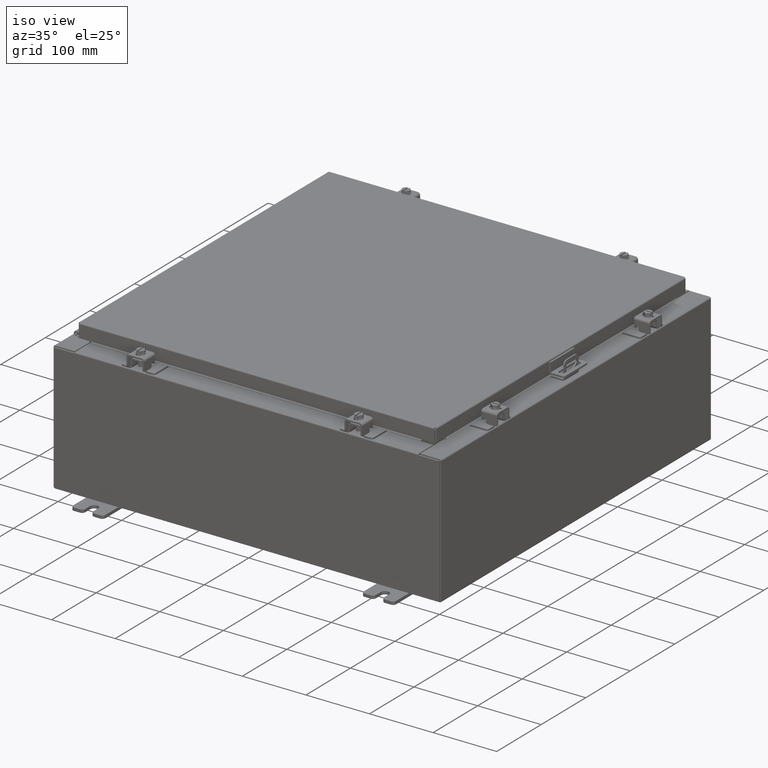
[diagram: clean part render]
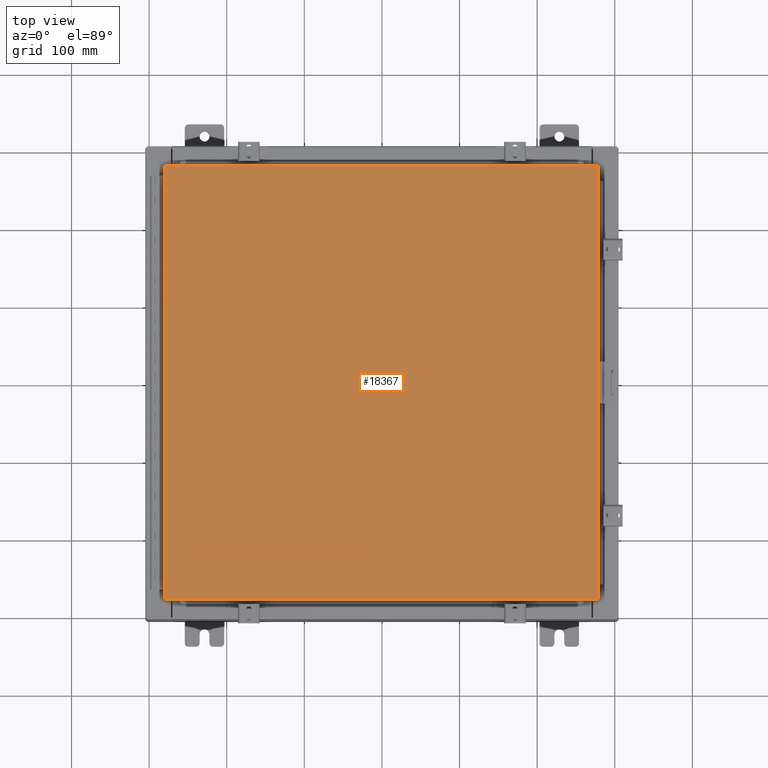
[diagram: tour spotlight — one face highlighted and labeled with its STEP entity id]
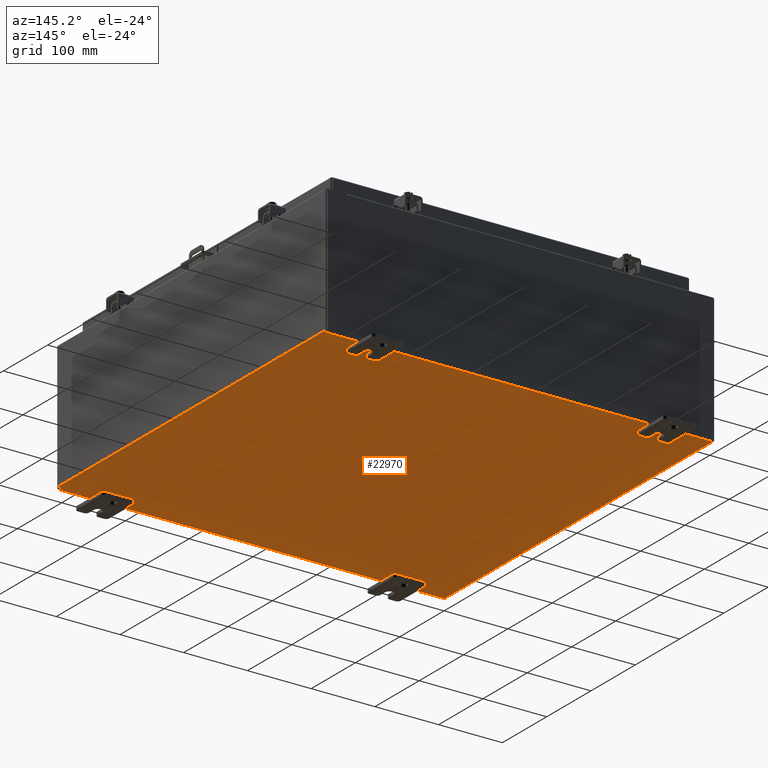
[diagram: tour spotlight — one face highlighted and labeled with its STEP entity id]
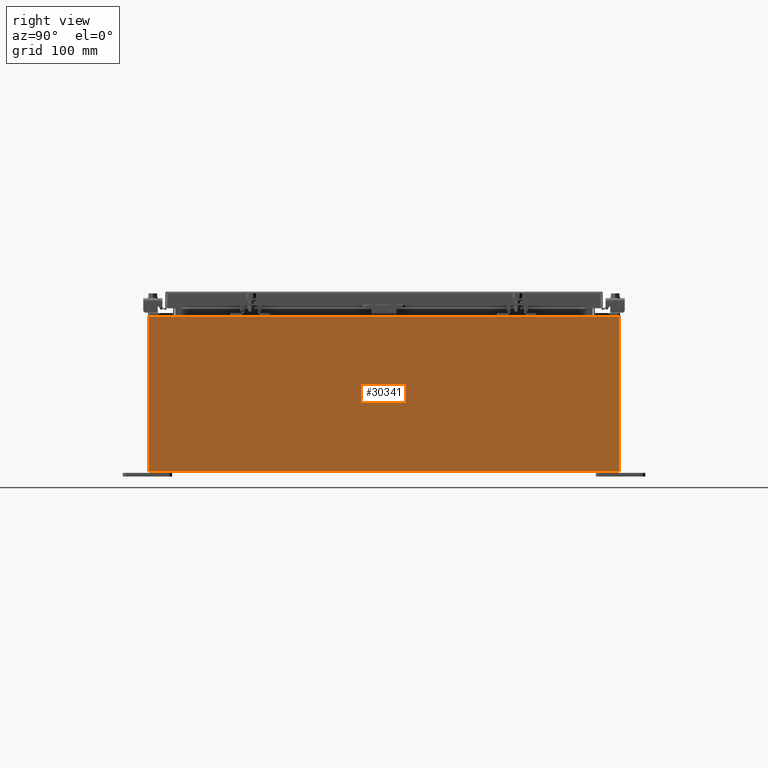
[diagram: tour spotlight — one face highlighted and labeled with its STEP entity id]
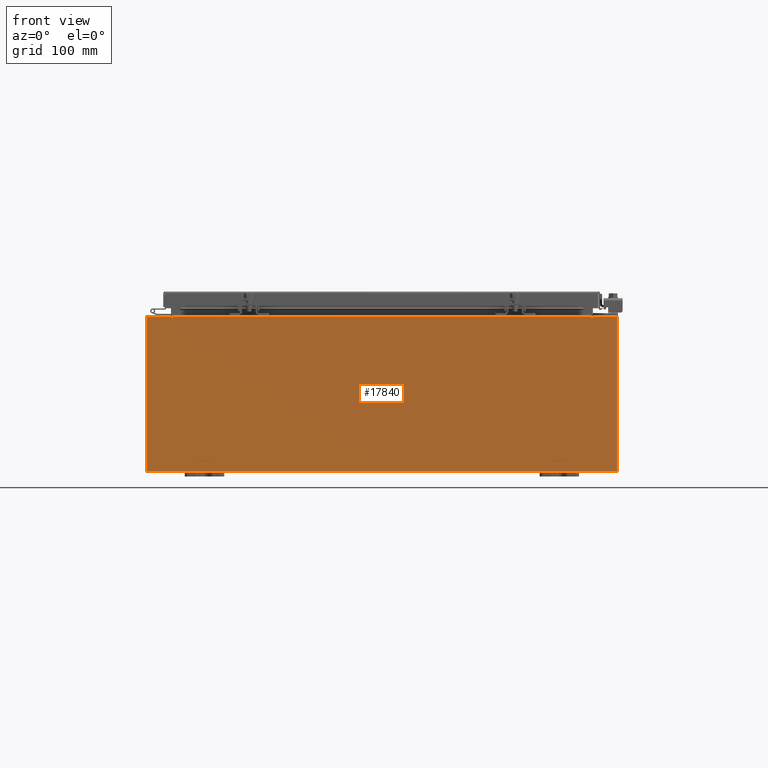
[diagram: tour spotlight — one face highlighted and labeled with its STEP entity id]
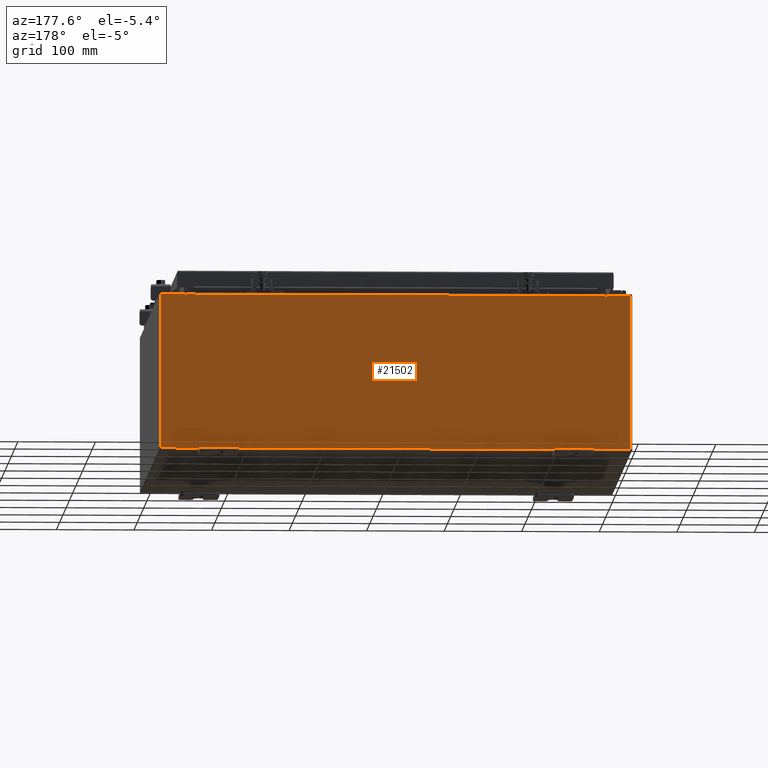
[diagram: tour spotlight — one face highlighted and labeled with its STEP entity id]
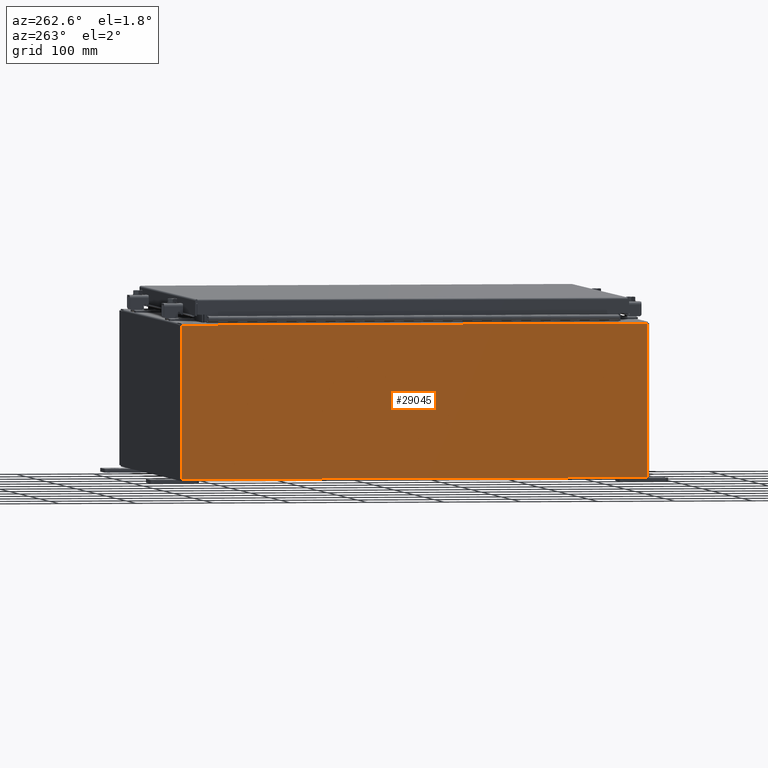
[diagram: tour spotlight — one face highlighted and labeled with its STEP entity id]
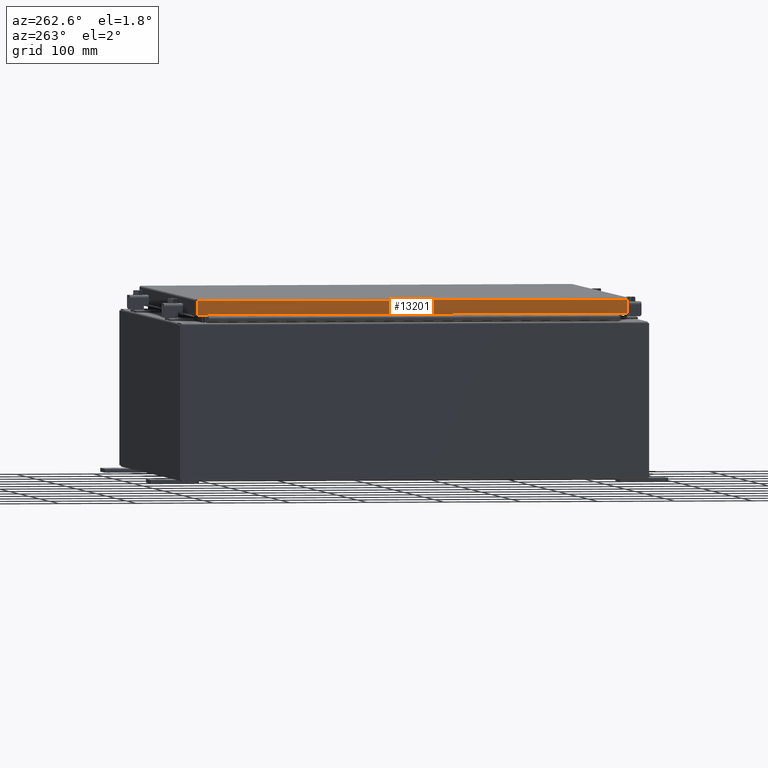
[diagram: tour spotlight — one face highlighted and labeled with its STEP entity id]
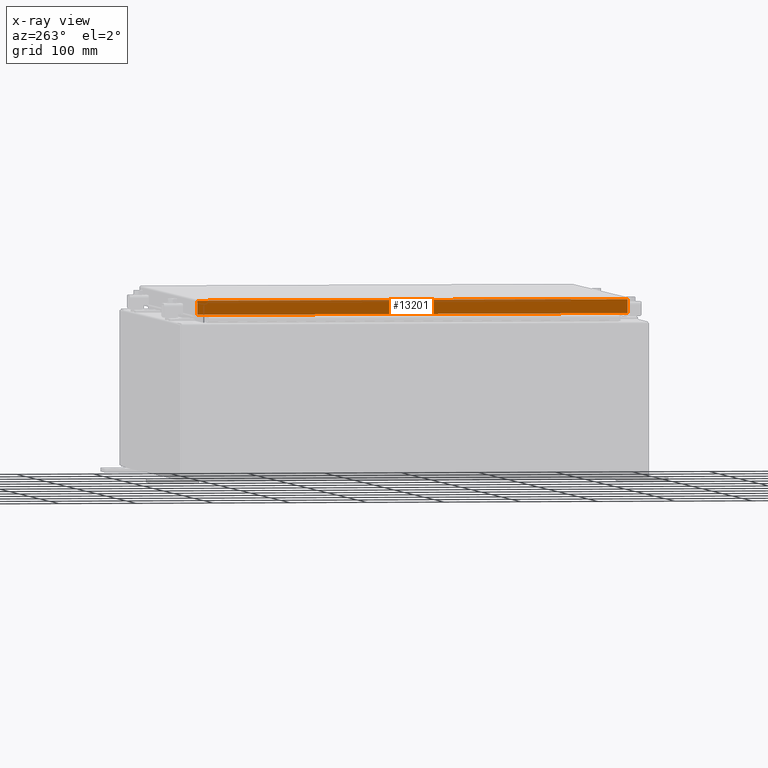
[diagram: x-ray of the same camera — body ghosted, this tour face saturated]
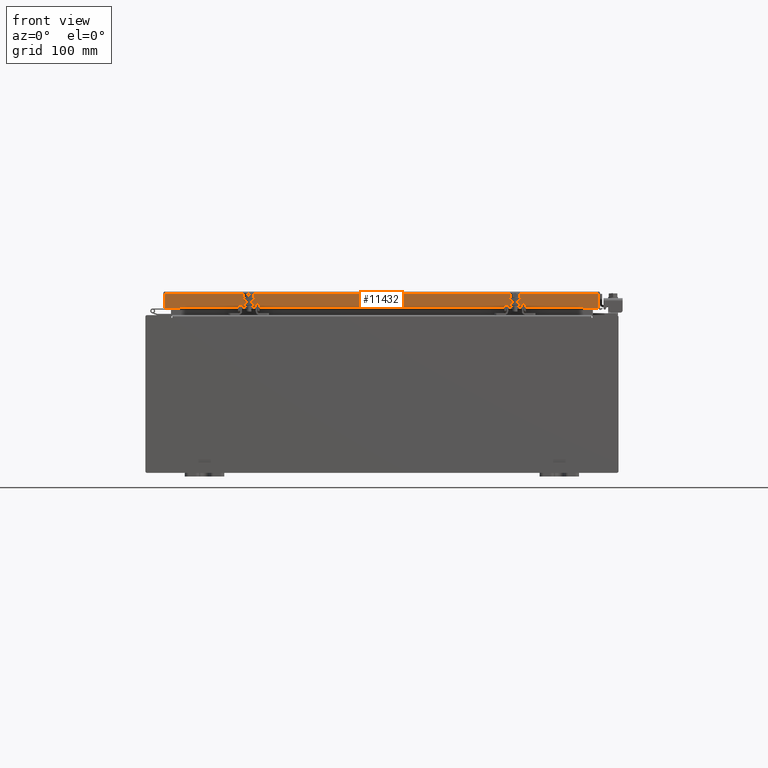
[diagram: tour spotlight — one face highlighted and labeled with its STEP entity id]
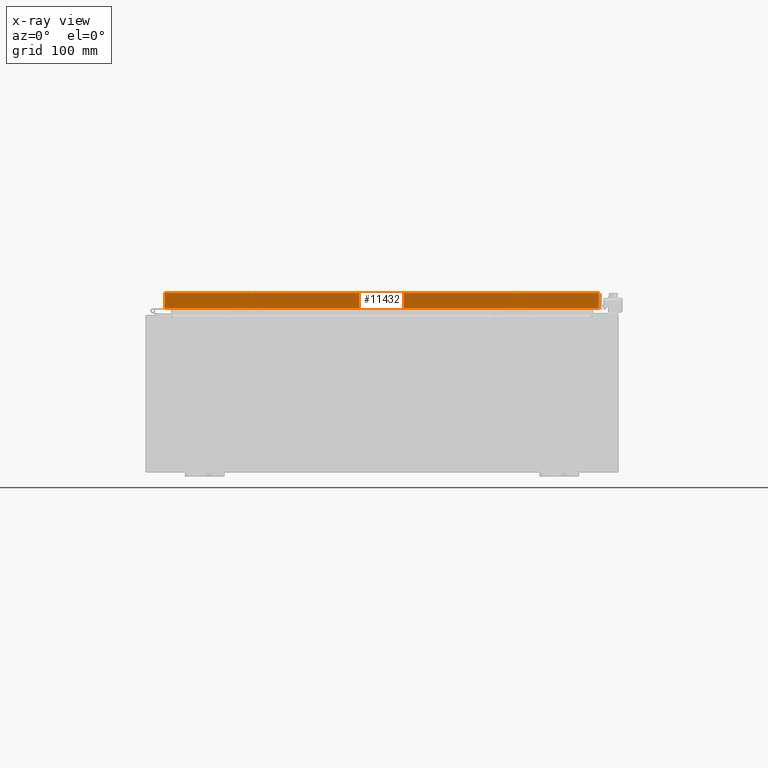
[diagram: x-ray of the same camera — body ghosted, this tour face saturated]
A machine part: a face-by-face anatomy tour. The part has 1709 B-rep faces; the first image is the clean iso view, then the 8 largest visible faces are spotlighted one at a time (largest first), each with its STEP entity span.

Face 1 — top view, entity #18367. In plain terms, the highlighted planar face has unit normal (0, 0, -1).
Definition (entity closure, byte-faithful):
#432 = CARTESIAN_POINT ( 'NONE',  ( 10.99029999999999800, 11.00629999999999600, -2.048885995248197400E-016 ) ) ;
#2096 = LINE ( 'NONE', #17104, #27994 ) ;
#2147 = DIRECTION ( 'NONE',  ( 1.000000000000000000, -0.0000000000000000000, -0.0000000000000000000 ) ) ;
#2684 = CARTESIAN_POINT ( 'NONE',  ( -10.99030000000000500, 11.00629999999999600, -1.348849946871729900E-015 ) ) ;
#2844 = CARTESIAN_POINT ( 'NONE',  ( 10.99029999999999600, -11.00630000000000100, -2.048885995248197400E-016 ) ) ;
#3166 = LINE ( 'NONE', #2684, #15663 ) ;
#3471 = DIRECTION ( 'NONE',  ( -1.000000000000000000, -0.0000000000000000000, -0.0000000000000000000 ) ) ;
#5227 = DIRECTION ( 'NONE',  ( 0.0000000000000000000, -1.000000000000000000, 0.0000000000000000000 ) ) ;
#5406 = VECTOR ( 'NONE', #3471, 39.37007874015748100 ) ;
#5778 = PLANE ( 'NONE',  #8831 ) ;
#6195 = VERTEX_POINT ( 'NONE', #432 ) ;
#6463 = EDGE_CURVE ( 'NONE', #23534, #7666, #22305, .T. ) ;
#7188 = DIRECTION ( 'NONE',  ( 0.0000000000000000000, 1.000000000000000000, 0.0000000000000000000 ) ) ;
#7666 = VERTEX_POINT ( 'NONE', #2844 ) ;
#8136 = CARTESIAN_POINT ( 'NONE',  ( -10.99030000000000500, 11.00629999999999600, -1.348849946871729900E-015 ) ) ;
#8318 = DIRECTION ( 'NONE',  ( 0.0000000000000000000, 0.0000000000000000000, -1.000000000000000000 ) ) ;
#8550 = VERTEX_POINT ( 'NONE', #8136 ) ;
#8831 = AXIS2_PLACEMENT_3D ( 'NONE', #23314, #8318, #25828 ) ;
#10209 = EDGE_CURVE ( 'NONE', #8550, #23534, #3166, .T. ) ;
#10996 = CARTESIAN_POINT ( 'NONE',  ( 10.99029999999999800, 11.00629999999999600, -2.048885995248197400E-016 ) ) ;
#11325 = CARTESIAN_POINT ( 'NONE',  ( -10.99030000000000000, -11.00630000000000100, 8.878505979408856000E-016 ) ) ;
#13457 = EDGE_CURVE ( 'NONE', #6195, #8550, #19458, .T. ) ;
#13938 = ORIENTED_EDGE ( 'NONE', *, *, #15837, .T. ) ;
#15663 = VECTOR ( 'NONE', #5227, 39.37007874015748100 ) ;
#15837 = EDGE_CURVE ( 'NONE', #7666, #6195, #2096, .T. ) ;
#16201 = FACE_OUTER_BOUND ( 'NONE', #18035, .T. ) ;
#17104 = CARTESIAN_POINT ( 'NONE',  ( 10.99029999999999600, -11.00630000000000100, -2.048885995248197400E-016 ) ) ;
#18035 = EDGE_LOOP ( 'NONE', ( #29267, #13938, #27727, #23154 ) ) ;
#18367 = ADVANCED_FACE ( 'NONE', ( #16201 ), #5778, .F. ) ;
#19458 = LINE ( 'NONE', #10996, #5406 ) ;
#22305 = LINE ( 'NONE', #11325, #26617 ) ;
#23154 = ORIENTED_EDGE ( 'NONE', *, *, #10209, .T. ) ;
#23314 = CARTESIAN_POINT ( 'NONE',  ( 0.0000000000000000000, 0.0000000000000000000, 0.0000000000000000000 ) ) ;
#23534 = VERTEX_POINT ( 'NONE', #28974 ) ;
#25828 = DIRECTION ( 'NONE',  ( -1.000000000000000000, 0.0000000000000000000, -0.0000000000000000000 ) ) ;
#26617 = VECTOR ( 'NONE', #2147, 39.37007874015748100 ) ;
#27727 = ORIENTED_EDGE ( 'NONE', *, *, #13457, .T. ) ;
#27994 = VECTOR ( 'NONE', #7188, 39.37007874015748100 ) ;
#28974 = CARTESIAN_POINT ( 'NONE',  ( -10.99030000000000000, -11.00630000000000100, 8.878505979408856000E-016 ) ) ;
#29267 = ORIENTED_EDGE ( 'NONE', *, *, #6463, .T. ) ;

Face 2 — auxiliary view, entity #22970. In plain terms, the highlighted planar face has unit normal (0, 0, -1).
Definition (entity closure, byte-faithful):
#242 = CARTESIAN_POINT ( 'NONE',  ( 0.0000000000000000000, 0.0000000000000000000, -0.07470000000000000300 ) ) ;
#617 = CARTESIAN_POINT ( 'NONE',  ( 11.91229999999999800, 11.92529999999999800, -0.07469999999999994700 ) ) ;
#2874 = ORIENTED_EDGE ( 'NONE', *, *, #22438, .T. ) ;
#5558 = EDGE_LOOP ( 'NONE', ( #30316, #13057, #15977, #2874 ) ) ;
#6281 = FACE_OUTER_BOUND ( 'NONE', #5558, .T. ) ;
#6306 = EDGE_CURVE ( 'NONE', #6997, #23798, #24672, .T. ) ;
#6997 = VERTEX_POINT ( 'NONE', #31986 ) ;
#7086 = VECTOR ( 'NONE', #30611, 39.37007874015748100 ) ;
#7185 = EDGE_CURVE ( 'NONE', #32145, #23798, #28538, .T. ) ;
#7345 = CARTESIAN_POINT ( 'NONE',  ( -11.91230000000000400, 11.92529999999999800, -0.07470000000000000300 ) ) ;
#7769 = PLANE ( 'NONE',  #20701 ) ;
#11276 = CARTESIAN_POINT ( 'NONE',  ( -12.00000000000000400, -11.92530000000000400, -0.07470000000000000300 ) ) ;
#11317 = VECTOR ( 'NONE', #27647, 39.37007874015748100 ) ;
#11567 = LINE ( 'NONE', #11276, #24143 ) ;
#13057 = ORIENTED_EDGE ( 'NONE', *, *, #7185, .T. ) ;
#15313 = DIRECTION ( 'NONE',  ( -1.000000000000000000, 0.0000000000000000000, -0.0000000000000000000 ) ) ;
#15977 = ORIENTED_EDGE ( 'NONE', *, *, #6306, .F. ) ;
#17891 = CARTESIAN_POINT ( 'NONE',  ( -12.00000000000000400, 11.92529999999999800, -0.07470000000000000300 ) ) ;
#18827 = DIRECTION ( 'NONE',  ( 1.000000000000000000, 0.0000000000000000000, 0.0000000000000000000 ) ) ;
#19596 = LINE ( 'NONE', #617, #7086 ) ;
#20046 = CARTESIAN_POINT ( 'NONE',  ( -11.91230000000000400, -11.92530000000000400, -0.07469999999999994700 ) ) ;
#20443 = VERTEX_POINT ( 'NONE', #27276 ) ;
#20701 = AXIS2_PLACEMENT_3D ( 'NONE', #242, #30361, #15313 ) ;
#20807 = DIRECTION ( 'NONE',  ( -0.0000000000000000000, 1.000000000000000000, -0.0000000000000000000 ) ) ;
#22438 = EDGE_CURVE ( 'NONE', #6997, #20443, #19596, .T. ) ;
#22970 = ADVANCED_FACE ( 'NONE', ( #6281 ), #7769, .T. ) ;
#23798 = VERTEX_POINT ( 'NONE', #7345 ) ;
#24143 = VECTOR ( 'NONE', #18827, 39.37007874015748100 ) ;
#24672 = LINE ( 'NONE', #17891, #11317 ) ;
#27276 = CARTESIAN_POINT ( 'NONE',  ( 11.91229999999998900, -11.92530000000000400, -0.07470000000000000300 ) ) ;
#27531 = CARTESIAN_POINT ( 'NONE',  ( -11.91230000000000400, -11.92530000000000000, -0.07469999999999994700 ) ) ;
#27647 = DIRECTION ( 'NONE',  ( -1.000000000000000000, -0.0000000000000000000, -0.0000000000000000000 ) ) ;
#27772 = VECTOR ( 'NONE', #20807, 39.37007874015748100 ) ;
#28538 = LINE ( 'NONE', #20046, #27772 ) ;
#29408 = EDGE_CURVE ( 'NONE', #32145, #20443, #11567, .T. ) ;
#30316 = ORIENTED_EDGE ( 'NONE', *, *, #29408, .F. ) ;
#30361 = DIRECTION ( 'NONE',  ( 0.0000000000000000000, 0.0000000000000000000, -1.000000000000000000 ) ) ;
#30611 = DIRECTION ( 'NONE',  ( -0.0000000000000000000, -1.000000000000000000, -0.0000000000000000000 ) ) ;
#31986 = CARTESIAN_POINT ( 'NONE',  ( 11.91229999999999800, 11.92529999999999600, -0.07469999999999994700 ) ) ;
#32145 = VERTEX_POINT ( 'NONE', #27531 ) ;

Face 3 — right view, entity #30341. In plain terms, the highlighted planar face has unit normal (-1, 0, 0).
Definition (entity closure, byte-faithful):
#946 = EDGE_LOOP ( 'NONE', ( #8430, #17517, #27939, #20616 ) ) ;
#1087 = DIRECTION ( 'NONE',  ( -0.0000000000000000000, -1.000000000000000000, -0.0000000000000000000 ) ) ;
#1364 = FACE_OUTER_BOUND ( 'NONE', #946, .T. ) ;
#1413 = VERTEX_POINT ( 'NONE', #2231 ) ;
#2231 = CARTESIAN_POINT ( 'NONE',  ( 12.00000000000002700, -11.92530000000000400, 7.837599999999998300 ) ) ;
#4464 = VECTOR ( 'NONE', #20491, 39.37007874015748100 ) ;
#7424 = VECTOR ( 'NONE', #1087, 39.37007874015748100 ) ;
#8267 = DIRECTION ( 'NONE',  ( -3.584876173029202900E-015, 0.0000000000000000000, -1.000000000000000000 ) ) ;
#8430 = ORIENTED_EDGE ( 'NONE', *, *, #23160, .T. ) ;
#9877 = DIRECTION ( 'NONE',  ( 3.584876173029202900E-015, 0.0000000000000000000, 1.000000000000000000 ) ) ;
#10539 = LINE ( 'NONE', #12360, #23091 ) ;
#12360 = CARTESIAN_POINT ( 'NONE',  ( 11.99999999999999800, 11.92529999999999800, -4.327932773236200600E-014 ) ) ;
#12517 = EDGE_CURVE ( 'NONE', #29876, #15176, #10539, .T. ) ;
#12856 = PLANE ( 'NONE',  #26150 ) ;
#15176 = VERTEX_POINT ( 'NONE', #32110 ) ;
#15390 = DIRECTION ( 'NONE',  ( 3.584876173029202900E-015, 0.0000000000000000000, 1.000000000000000000 ) ) ;
#17517 = ORIENTED_EDGE ( 'NONE', *, *, #31709, .T. ) ;
#17748 = LINE ( 'NONE', #17928, #4464 ) ;
#17778 = LINE ( 'NONE', #20841, #30360 ) ;
#17928 = CARTESIAN_POINT ( 'NONE',  ( 11.99999999999999800, -11.92530000000000400, 0.01299999999999984700 ) ) ;
#18593 = CARTESIAN_POINT ( 'NONE',  ( 12.00000000000003000, 11.92529999999999800, 7.837599999999992100 ) ) ;
#20491 = DIRECTION ( 'NONE',  ( -0.0000000000000000000, -1.000000000000000000, -0.0000000000000000000 ) ) ;
#20616 = ORIENTED_EDGE ( 'NONE', *, *, #12517, .T. ) ;
#20841 = CARTESIAN_POINT ( 'NONE',  ( 11.99999999999999800, -11.92530000000000400, -4.327932773236200600E-014 ) ) ;
#21554 = LINE ( 'NONE', #18593, #7424 ) ;
#23091 = VECTOR ( 'NONE', #9877, 39.37007874015748100 ) ;
#23160 = EDGE_CURVE ( 'NONE', #15176, #1413, #21554, .T. ) ;
#25392 = CARTESIAN_POINT ( 'NONE',  ( 11.99999999999999800, 0.0000000000000000000, -4.327932773236200600E-014 ) ) ;
#25971 = CARTESIAN_POINT ( 'NONE',  ( 11.99999999999999800, 11.92529999999999600, 0.01299999999999984700 ) ) ;
#26150 = AXIS2_PLACEMENT_3D ( 'NONE', #25392, #30428, #15390 ) ;
#27939 = ORIENTED_EDGE ( 'NONE', *, *, #32257, .F. ) ;
#29273 = CARTESIAN_POINT ( 'NONE',  ( 11.99999999999999800, -11.92530000000000400, 0.01299999999999983600 ) ) ;
#29876 = VERTEX_POINT ( 'NONE', #25971 ) ;
#30341 = ADVANCED_FACE ( 'NONE', ( #1364 ), #12856, .F. ) ;
#30360 = VECTOR ( 'NONE', #8267, 39.37007874015748100 ) ;
#30428 = DIRECTION ( 'NONE',  ( -1.000000000000000000, 0.0000000000000000000, 3.584876173029202900E-015 ) ) ;
#31709 = EDGE_CURVE ( 'NONE', #1413, #31925, #17778, .T. ) ;
#31925 = VERTEX_POINT ( 'NONE', #29273 ) ;
#32110 = CARTESIAN_POINT ( 'NONE',  ( 12.00000000000003000, 11.92529999999999600, 7.837599999999992100 ) ) ;
#32257 = EDGE_CURVE ( 'NONE', #29876, #31925, #17748, .T. ) ;

Face 4 — front view, entity #17840. In plain terms, the highlighted planar face has unit normal (-0, 1, -0).
Definition (entity closure, byte-faithful):
#585 = DIRECTION ( 'NONE',  ( 0.0000000000000000000, -1.000000000000000000, 0.0000000000000000000 ) ) ;
#811 = EDGE_CURVE ( 'NONE', #15216, #24751, #1844, .T. ) ;
#1008 = ORIENTED_EDGE ( 'NONE', *, *, #13080, .T. ) ;
#1298 = VERTEX_POINT ( 'NONE', #8685 ) ;
#1507 = DIRECTION ( 'NONE',  ( -1.000000000000000000, -0.0000000000000000000, -0.0000000000000000000 ) ) ;
#1511 = VECTOR ( 'NONE', #32078, 39.37007874015748100 ) ;
#1607 = VERTEX_POINT ( 'NONE', #3925 ) ;
#1844 = CIRCLE ( 'NONE', #30764, 0.01867499999999949400 ) ;
#1905 = ORIENTED_EDGE ( 'NONE', *, *, #30459, .T. ) ;
#2186 = CIRCLE ( 'NONE', #8495, 0.01867499999999949400 ) ;
#2269 = ORIENTED_EDGE ( 'NONE', *, *, #14711, .T. ) ;
#3448 = CARTESIAN_POINT ( 'NONE',  ( 11.92530000000000000, 0.0000000000000000000, 3.925299999999999600 ) ) ;
#3925 = CARTESIAN_POINT ( 'NONE',  ( 11.92530000000000000, 0.0000000000000000000, 3.925299999999999600 ) ) ;
#4037 = CARTESIAN_POINT ( 'NONE',  ( -10.63720000000000400, 1.024442997624098700E-016, 3.912299999999999700 ) ) ;
#4605 = CARTESIAN_POINT ( 'NONE',  ( 11.92530000000000000, 0.0000000000000000000, -3.925299999999999600 ) ) ;
#4632 = EDGE_CURVE ( 'NONE', #1298, #1607, #24398, .T. ) ;
#5166 = CARTESIAN_POINT ( 'NONE',  ( -11.92530000000000000, 0.0000000000000000000, 3.925299999999999600 ) ) ;
#5181 = VERTEX_POINT ( 'NONE', #30979 ) ;
#5384 = CARTESIAN_POINT ( 'NONE',  ( 10.67454999999983300, -0.0000000000000000000, -4.633366117301815000E-013 ) ) ;
#5598 = LINE ( 'NONE', #21406, #24799 ) ;
#5957 = VECTOR ( 'NONE', #23141, 39.37007874015748100 ) ;
#6132 = ORIENTED_EDGE ( 'NONE', *, *, #10433, .T. ) ;
#6356 = EDGE_LOOP ( 'NONE', ( #13497, #23439, #15443, #2269, #14415, #24029, #18757, #16213, #6132, #18239, #1905, #1008 ) ) ;
#6729 = LINE ( 'NONE', #8138, #5957 ) ;
#6829 = DIRECTION ( 'NONE',  ( 1.000000000000000000, 0.0000000000000000000, 0.0000000000000000000 ) ) ;
#6886 = DIRECTION ( 'NONE',  ( 0.0000000000000000000, 0.0000000000000000000, -1.000000000000000000 ) ) ;
#7116 = CARTESIAN_POINT ( 'NONE',  ( -10.63720000000000400, -0.0000000000000000000, 3.874949999999999700 ) ) ;
#7706 = VERTEX_POINT ( 'NONE', #15496 ) ;
#7897 = DIRECTION ( 'NONE',  ( -4.340572780400004900E-014, 0.0000000000000000000, -1.000000000000000000 ) ) ;
#7930 = DIRECTION ( 'NONE',  ( 0.0000000000000000000, 0.0000000000000000000, -1.000000000000000000 ) ) ;
#7970 = VERTEX_POINT ( 'NONE', #27659 ) ;
#8138 = CARTESIAN_POINT ( 'NONE',  ( -10.67455000000000200, -0.0000000000000000000, 0.0000000000000000000 ) ) ;
#8250 = CARTESIAN_POINT ( 'NONE',  ( 10.65587500000000200, 0.0000000000000000000, 3.874949999999999700 ) ) ;
#8495 = AXIS2_PLACEMENT_3D ( 'NONE', #8250, #25770, #10754 ) ;
#8685 = CARTESIAN_POINT ( 'NONE',  ( 10.67455000000000200, 0.0000000000000000000, 3.925299999999999600 ) ) ;
#8928 = DIRECTION ( 'NONE',  ( 0.0000000000000000000, 0.0000000000000000000, 1.000000000000000000 ) ) ;
#9199 = LINE ( 'NONE', #14435, #29197 ) ;
#9402 = VECTOR ( 'NONE', #13505, 39.37007874015748100 ) ;
#9954 = VECTOR ( 'NONE', #30136, 39.37007874015748100 ) ;
#10028 = CARTESIAN_POINT ( 'NONE',  ( -11.92530000000000000, 0.0000000000000000000, 3.925299999999999600 ) ) ;
#10055 = AXIS2_PLACEMENT_3D ( 'NONE', #15530, #585, #18042 ) ;
#10433 = EDGE_CURVE ( 'NONE', #1607, #17002, #30196, .T. ) ;
#10754 = DIRECTION ( 'NONE',  ( 0.0000000000000000000, 0.0000000000000000000, -1.000000000000000000 ) ) ;
#11077 = CARTESIAN_POINT ( 'NONE',  ( -11.92530000000000000, 0.0000000000000000000, 3.925299999999999600 ) ) ;
#11860 = CARTESIAN_POINT ( 'NONE',  ( -10.63720000000000400, 1.024442997624098700E-016, 3.912299999999999700 ) ) ;
#12011 = CARTESIAN_POINT ( 'NONE',  ( -11.92530000000000000, 0.0000000000000000000, 3.925299999999999600 ) ) ;
#12754 = FACE_OUTER_BOUND ( 'NONE', #6356, .T. ) ;
#13080 = EDGE_CURVE ( 'NONE', #28573, #15372, #28186, .T. ) ;
#13497 = ORIENTED_EDGE ( 'NONE', *, *, #16602, .F. ) ;
#13505 = DIRECTION ( 'NONE',  ( 0.0000000000000000000, 0.0000000000000000000, -1.000000000000000000 ) ) ;
#14415 = ORIENTED_EDGE ( 'NONE', *, *, #31374, .F. ) ;
#14435 = CARTESIAN_POINT ( 'NONE',  ( -10.63720000000000400, -0.0000000000000000000, 0.0000000000000000000 ) ) ;
#14711 = EDGE_CURVE ( 'NONE', #24834, #19223, #31509, .T. ) ;
#15216 = VERTEX_POINT ( 'NONE', #7116 ) ;
#15372 = VERTEX_POINT ( 'NONE', #17718 ) ;
#15443 = ORIENTED_EDGE ( 'NONE', *, *, #18086, .F. ) ;
#15496 = CARTESIAN_POINT ( 'NONE',  ( 10.67455000000000200, 0.0000000000000000000, 3.874949999999999700 ) ) ;
#15530 = CARTESIAN_POINT ( 'NONE',  ( 0.0000000000000000000, 0.0000000000000000000, 0.0000000000000000000 ) ) ;
#16146 = CARTESIAN_POINT ( 'NONE',  ( -10.67455000000000200, 0.0000000000000000000, 3.874949999999999700 ) ) ;
#16213 = ORIENTED_EDGE ( 'NONE', *, *, #4632, .T. ) ;
#16407 = VECTOR ( 'NONE', #7897, 39.37007874015748100 ) ;
#16602 = EDGE_CURVE ( 'NONE', #24751, #15372, #6729, .T. ) ;
#17002 = VERTEX_POINT ( 'NONE', #4605 ) ;
#17211 = CARTESIAN_POINT ( 'NONE',  ( -10.65587500000000200, 0.0000000000000000000, 3.874949999999999700 ) ) ;
#17718 = CARTESIAN_POINT ( 'NONE',  ( -10.67455000000000200, 0.0000000000000000000, 3.925299999999999600 ) ) ;
#17840 = ADVANCED_FACE ( 'NONE', ( #12754 ), #22859, .F. ) ;
#18042 = DIRECTION ( 'NONE',  ( 0.0000000000000000000, -0.0000000000000000000, -1.000000000000000000 ) ) ;
#18086 = EDGE_CURVE ( 'NONE', #24834, #15216, #9199, .T. ) ;
#18239 = ORIENTED_EDGE ( 'NONE', *, *, #27684, .T. ) ;
#18757 = ORIENTED_EDGE ( 'NONE', *, *, #26810, .F. ) ;
#19223 = VERTEX_POINT ( 'NONE', #24498 ) ;
#19289 = DIRECTION ( 'NONE',  ( -0.0000000000000000000, 1.000000000000000000, -0.0000000000000000000 ) ) ;
#19709 = VECTOR ( 'NONE', #6829, 39.37007874015748100 ) ;
#21406 = CARTESIAN_POINT ( 'NONE',  ( 10.63720000000000400, 0.0000000000000000000, 0.0000000000000000000 ) ) ;
#21887 = LINE ( 'NONE', #31525, #26984 ) ;
#22859 = PLANE ( 'NONE',  #10055 ) ;
#23141 = DIRECTION ( 'NONE',  ( 0.0000000000000000000, 0.0000000000000000000, 1.000000000000000000 ) ) ;
#23439 = ORIENTED_EDGE ( 'NONE', *, *, #811, .F. ) ;
#24029 = ORIENTED_EDGE ( 'NONE', *, *, #29269, .F. ) ;
#24398 = LINE ( 'NONE', #11077, #30280 ) ;
#24498 = CARTESIAN_POINT ( 'NONE',  ( 10.63720000000000400, 0.0000000000000000000, 3.912299999999999700 ) ) ;
#24751 = VERTEX_POINT ( 'NONE', #16146 ) ;
#24799 = VECTOR ( 'NONE', #8928, 39.37007874015748100 ) ;
#24834 = VERTEX_POINT ( 'NONE', #4037 ) ;
#25770 = DIRECTION ( 'NONE',  ( -0.0000000000000000000, 1.000000000000000000, -0.0000000000000000000 ) ) ;
#26000 = DIRECTION ( 'NONE',  ( 1.000000000000000000, 0.0000000000000000000, 0.0000000000000000000 ) ) ;
#26810 = EDGE_CURVE ( 'NONE', #1298, #7706, #30582, .T. ) ;
#26984 = VECTOR ( 'NONE', #1507, 39.37007874015748100 ) ;
#27659 = CARTESIAN_POINT ( 'NONE',  ( 10.63720000000000400, 0.0000000000000000000, 3.874949999999999700 ) ) ;
#27684 = EDGE_CURVE ( 'NONE', #17002, #5181, #21887, .T. ) ;
#28186 = LINE ( 'NONE', #12011, #1511 ) ;
#28573 = VERTEX_POINT ( 'NONE', #10028 ) ;
#29197 = VECTOR ( 'NONE', #6886, 39.37007874015748100 ) ;
#29269 = EDGE_CURVE ( 'NONE', #7706, #7970, #2186, .T. ) ;
#29957 = LINE ( 'NONE', #5166, #9954 ) ;
#30136 = DIRECTION ( 'NONE',  ( -0.0000000000000000000, -0.0000000000000000000, 1.000000000000000000 ) ) ;
#30196 = LINE ( 'NONE', #3448, #9402 ) ;
#30280 = VECTOR ( 'NONE', #26000, 39.37007874015748100 ) ;
#30459 = EDGE_CURVE ( 'NONE', #5181, #28573, #29957, .T. ) ;
#30582 = LINE ( 'NONE', #5384, #16407 ) ;
#30764 = AXIS2_PLACEMENT_3D ( 'NONE', #17211, #19289, #7930 ) ;
#30979 = CARTESIAN_POINT ( 'NONE',  ( -11.92530000000000000, 0.0000000000000000000, -3.925299999999999600 ) ) ;
#31374 = EDGE_CURVE ( 'NONE', #7970, #19223, #5598, .T. ) ;
#31509 = LINE ( 'NONE', #11860, #19709 ) ;
#31525 = CARTESIAN_POINT ( 'NONE',  ( -11.92530000000000000, 0.0000000000000000000, -3.925299999999999600 ) ) ;
#32078 = DIRECTION ( 'NONE',  ( 1.000000000000000000, 0.0000000000000000000, 0.0000000000000000000 ) ) ;

Face 5 — auxiliary view, entity #21502. In plain terms, the highlighted planar face has unit normal (0, -1, 0).
Definition (entity closure, byte-faithful):
#420 = LINE ( 'NONE', #22705, #26274 ) ;
#580 = DIRECTION ( 'NONE',  ( 0.0000000000000000000, 0.0000000000000000000, -1.000000000000000000 ) ) ;
#770 = EDGE_CURVE ( 'NONE', #28570, #28547, #18270, .T. ) ;
#807 = VECTOR ( 'NONE', #16026, 39.37007874015748100 ) ;
#1073 = CARTESIAN_POINT ( 'NONE',  ( -11.92530000000000000, 0.0000000000000000000, 3.925299999999999600 ) ) ;
#1273 = DIRECTION ( 'NONE',  ( -0.0000000000000000000, -0.0000000000000000000, 1.000000000000000000 ) ) ;
#1351 = EDGE_CURVE ( 'NONE', #28547, #10000, #7670, .T. ) ;
#1690 = EDGE_CURVE ( 'NONE', #17797, #13653, #24920, .T. ) ;
#1941 = VERTEX_POINT ( 'NONE', #7713 ) ;
#2008 = CARTESIAN_POINT ( 'NONE',  ( 0.0000000000000000000, 0.0000000000000000000, 0.0000000000000000000 ) ) ;
#3670 = DIRECTION ( 'NONE',  ( -4.340572780400004900E-014, 0.0000000000000000000, -1.000000000000000000 ) ) ;
#3720 = AXIS2_PLACEMENT_3D ( 'NONE', #28902, #25138, #28424 ) ;
#4440 = DIRECTION ( 'NONE',  ( 0.0000000000000000000, 0.0000000000000000000, 1.000000000000000000 ) ) ;
#4535 = DIRECTION ( 'NONE',  ( 0.0000000000000000000, -0.0000000000000000000, -1.000000000000000000 ) ) ;
#4568 = CARTESIAN_POINT ( 'NONE',  ( 10.63720000000000400, 0.0000000000000000000, 3.874949999999999700 ) ) ;
#4716 = CARTESIAN_POINT ( 'NONE',  ( 10.63720000000000400, 0.0000000000000000000, 3.912299999999999700 ) ) ;
#4880 = DIRECTION ( 'NONE',  ( 1.000000000000000000, 0.0000000000000000000, 0.0000000000000000000 ) ) ;
#5090 = VECTOR ( 'NONE', #12630, 39.37007874015748100 ) ;
#5675 = ORIENTED_EDGE ( 'NONE', *, *, #770, .F. ) ;
#5711 = EDGE_CURVE ( 'NONE', #10000, #15224, #420, .T. ) ;
#5719 = EDGE_CURVE ( 'NONE', #13094, #22924, #7047, .T. ) ;
#6043 = EDGE_CURVE ( 'NONE', #13653, #18441, #12490, .T. ) ;
#7021 = AXIS2_PLACEMENT_3D ( 'NONE', #2008, #19472, #4535 ) ;
#7047 = LINE ( 'NONE', #31066, #7849 ) ;
#7608 = CARTESIAN_POINT ( 'NONE',  ( 11.92530000000000000, 0.0000000000000000000, 3.925299999999999600 ) ) ;
#7670 = CIRCLE ( 'NONE', #3720, 0.01867499999999949400 ) ;
#7713 = CARTESIAN_POINT ( 'NONE',  ( -10.63720000000000400, 1.024442997624098700E-016, 3.912299999999999700 ) ) ;
#7849 = VECTOR ( 'NONE', #1273, 39.37007874015748100 ) ;
#8680 = CARTESIAN_POINT ( 'NONE',  ( -11.92530000000000000, 0.0000000000000000000, -3.925299999999999600 ) ) ;
#8713 = VECTOR ( 'NONE', #11180, 39.37007874015748100 ) ;
#8725 = CARTESIAN_POINT ( 'NONE',  ( 10.67454999999983300, -0.0000000000000000000, -4.633366117301815000E-013 ) ) ;
#9065 = DIRECTION ( 'NONE',  ( -0.0000000000000000000, 1.000000000000000000, -0.0000000000000000000 ) ) ;
#9270 = VECTOR ( 'NONE', #3670, 39.37007874015748100 ) ;
#9486 = LINE ( 'NONE', #8680, #8713 ) ;
#9762 = EDGE_LOOP ( 'NONE', ( #24849, #23084, #18252, #20844, #15056, #11667, #5675, #23045, #15960, #13000, #13691, #17795 ) ) ;
#10000 = VERTEX_POINT ( 'NONE', #4568 ) ;
#10126 = CARTESIAN_POINT ( 'NONE',  ( -10.63720000000000400, -0.0000000000000000000, 3.874949999999999700 ) ) ;
#11180 = DIRECTION ( 'NONE',  ( -1.000000000000000000, -0.0000000000000000000, -0.0000000000000000000 ) ) ;
#11667 = ORIENTED_EDGE ( 'NONE', *, *, #1351, .F. ) ;
#11782 = VECTOR ( 'NONE', #580, 39.37007874015748100 ) ;
#12373 = VECTOR ( 'NONE', #19646, 39.37007874015748100 ) ;
#12490 = LINE ( 'NONE', #20100, #5090 ) ;
#12630 = DIRECTION ( 'NONE',  ( 0.0000000000000000000, 0.0000000000000000000, 1.000000000000000000 ) ) ;
#13000 = ORIENTED_EDGE ( 'NONE', *, *, #21821, .T. ) ;
#13094 = VERTEX_POINT ( 'NONE', #29570 ) ;
#13653 = VERTEX_POINT ( 'NONE', #22793 ) ;
#13691 = ORIENTED_EDGE ( 'NONE', *, *, #5719, .T. ) ;
#14138 = EDGE_CURVE ( 'NONE', #1941, #15224, #19030, .T. ) ;
#14740 = CARTESIAN_POINT ( 'NONE',  ( -10.63720000000000400, 1.024442997624098700E-016, 3.912299999999999700 ) ) ;
#14793 = AXIS2_PLACEMENT_3D ( 'NONE', #21668, #9065, #30508 ) ;
#14987 = VERTEX_POINT ( 'NONE', #28850 ) ;
#15056 = ORIENTED_EDGE ( 'NONE', *, *, #5711, .F. ) ;
#15224 = VERTEX_POINT ( 'NONE', #4716 ) ;
#15397 = LINE ( 'NONE', #7608, #30333 ) ;
#15525 = CARTESIAN_POINT ( 'NONE',  ( -10.63720000000000400, -0.0000000000000000000, 0.0000000000000000000 ) ) ;
#15960 = ORIENTED_EDGE ( 'NONE', *, *, #18821, .T. ) ;
#16025 = CARTESIAN_POINT ( 'NONE',  ( -10.67455000000000200, 0.0000000000000000000, 3.925299999999999600 ) ) ;
#16026 = DIRECTION ( 'NONE',  ( 1.000000000000000000, 0.0000000000000000000, 0.0000000000000000000 ) ) ;
#17481 = CARTESIAN_POINT ( 'NONE',  ( -11.92530000000000000, 0.0000000000000000000, 3.925299999999999600 ) ) ;
#17795 = ORIENTED_EDGE ( 'NONE', *, *, #22244, .T. ) ;
#17797 = VERTEX_POINT ( 'NONE', #10126 ) ;
#18252 = ORIENTED_EDGE ( 'NONE', *, *, #20182, .F. ) ;
#18270 = LINE ( 'NONE', #8725, #9270 ) ;
#18441 = VERTEX_POINT ( 'NONE', #16025 ) ;
#18821 = EDGE_CURVE ( 'NONE', #14987, #19641, #15397, .T. ) ;
#19030 = LINE ( 'NONE', #14740, #12373 ) ;
#19472 = DIRECTION ( 'NONE',  ( 0.0000000000000000000, -1.000000000000000000, 0.0000000000000000000 ) ) ;
#19641 = VERTEX_POINT ( 'NONE', #28517 ) ;
#19646 = DIRECTION ( 'NONE',  ( 1.000000000000000000, 0.0000000000000000000, 0.0000000000000000000 ) ) ;
#19972 = LINE ( 'NONE', #1073, #807 ) ;
#19980 = CARTESIAN_POINT ( 'NONE',  ( 10.67455000000000200, 0.0000000000000000000, 3.874949999999999700 ) ) ;
#20100 = CARTESIAN_POINT ( 'NONE',  ( -10.67455000000000200, -0.0000000000000000000, 0.0000000000000000000 ) ) ;
#20182 = EDGE_CURVE ( 'NONE', #1941, #17797, #31802, .T. ) ;
#20652 = EDGE_CURVE ( 'NONE', #28570, #14987, #19972, .T. ) ;
#20844 = ORIENTED_EDGE ( 'NONE', *, *, #14138, .T. ) ;
#21502 = ADVANCED_FACE ( 'NONE', ( #24022 ), #32018, .F. ) ;
#21668 = CARTESIAN_POINT ( 'NONE',  ( -10.65587500000000200, 0.0000000000000000000, 3.874949999999999700 ) ) ;
#21821 = EDGE_CURVE ( 'NONE', #19641, #13094, #9486, .T. ) ;
#22244 = EDGE_CURVE ( 'NONE', #22924, #18441, #24367, .T. ) ;
#22393 = CARTESIAN_POINT ( 'NONE',  ( -11.92530000000000000, 0.0000000000000000000, 3.925299999999999600 ) ) ;
#22705 = CARTESIAN_POINT ( 'NONE',  ( 10.63720000000000400, 0.0000000000000000000, 0.0000000000000000000 ) ) ;
#22793 = CARTESIAN_POINT ( 'NONE',  ( -10.67455000000000200, 0.0000000000000000000, 3.874949999999999700 ) ) ;
#22924 = VERTEX_POINT ( 'NONE', #17481 ) ;
#23045 = ORIENTED_EDGE ( 'NONE', *, *, #20652, .T. ) ;
#23084 = ORIENTED_EDGE ( 'NONE', *, *, #1690, .F. ) ;
#24022 = FACE_OUTER_BOUND ( 'NONE', #9762, .T. ) ;
#24367 = LINE ( 'NONE', #22393, #31812 ) ;
#24849 = ORIENTED_EDGE ( 'NONE', *, *, #6043, .F. ) ;
#24920 = CIRCLE ( 'NONE', #14793, 0.01867499999999949400 ) ;
#25138 = DIRECTION ( 'NONE',  ( -0.0000000000000000000, 1.000000000000000000, -0.0000000000000000000 ) ) ;
#25161 = DIRECTION ( 'NONE',  ( 0.0000000000000000000, 0.0000000000000000000, -1.000000000000000000 ) ) ;
#26274 = VECTOR ( 'NONE', #4440, 39.37007874015748100 ) ;
#27594 = CARTESIAN_POINT ( 'NONE',  ( 10.67455000000000200, 0.0000000000000000000, 3.925299999999999600 ) ) ;
#28424 = DIRECTION ( 'NONE',  ( 0.0000000000000000000, 0.0000000000000000000, -1.000000000000000000 ) ) ;
#28517 = CARTESIAN_POINT ( 'NONE',  ( 11.92530000000000000, 0.0000000000000000000, -3.925299999999999600 ) ) ;
#28547 = VERTEX_POINT ( 'NONE', #19980 ) ;
#28570 = VERTEX_POINT ( 'NONE', #27594 ) ;
#28850 = CARTESIAN_POINT ( 'NONE',  ( 11.92530000000000000, 0.0000000000000000000, 3.925299999999999600 ) ) ;
#28902 = CARTESIAN_POINT ( 'NONE',  ( 10.65587500000000200, 0.0000000000000000000, 3.874949999999999700 ) ) ;
#29570 = CARTESIAN_POINT ( 'NONE',  ( -11.92530000000000000, 0.0000000000000000000, -3.925299999999999600 ) ) ;
#30333 = VECTOR ( 'NONE', #25161, 39.37007874015748100 ) ;
#30508 = DIRECTION ( 'NONE',  ( 0.0000000000000000000, 0.0000000000000000000, -1.000000000000000000 ) ) ;
#31066 = CARTESIAN_POINT ( 'NONE',  ( -11.92530000000000000, 0.0000000000000000000, 3.925299999999999600 ) ) ;
#31802 = LINE ( 'NONE', #15525, #11782 ) ;
#31812 = VECTOR ( 'NONE', #4880, 39.37007874015748100 ) ;
#32018 = PLANE ( 'NONE',  #7021 ) ;

Face 6 — auxiliary view, entity #29045. In plain terms, the highlighted planar face has unit normal (1, 0, 0).
Definition (entity closure, byte-faithful):
#3861 = LINE ( 'NONE', #4096, #29713 ) ;
#4096 = CARTESIAN_POINT ( 'NONE',  ( -12.00000000000000400, 11.92529999999999800, 0.01299999999999984700 ) ) ;
#4366 = EDGE_CURVE ( 'NONE', #9237, #21201, #18090, .T. ) ;
#5855 = CARTESIAN_POINT ( 'NONE',  ( -12.00000000000003200, 11.92529999999999800, 7.837599999999999200 ) ) ;
#6741 = VECTOR ( 'NONE', #30302, 39.37007874015748100 ) ;
#7356 = CARTESIAN_POINT ( 'NONE',  ( -12.00000000000000400, 0.0000000000000000000, -4.327932773236202500E-014 ) ) ;
#7699 = CARTESIAN_POINT ( 'NONE',  ( -12.00000000000000400, 11.92529999999999800, -4.327932773236202500E-014 ) ) ;
#8467 = VERTEX_POINT ( 'NONE', #16509 ) ;
#8505 = DIRECTION ( 'NONE',  ( -3.584876173029202900E-015, 0.0000000000000000000, 1.000000000000000000 ) ) ;
#9237 = VERTEX_POINT ( 'NONE', #19124 ) ;
#9901 = DIRECTION ( 'NONE',  ( 3.584876173029202900E-015, 0.0000000000000000000, -1.000000000000000000 ) ) ;
#10289 = ORIENTED_EDGE ( 'NONE', *, *, #31570, .T. ) ;
#10831 = DIRECTION ( 'NONE',  ( 0.0000000000000000000, 1.000000000000000000, 0.0000000000000000000 ) ) ;
#13403 = LINE ( 'NONE', #7699, #6741 ) ;
#15667 = VECTOR ( 'NONE', #8505, 39.37007874015748100 ) ;
#16509 = CARTESIAN_POINT ( 'NONE',  ( -12.00000000000000400, -11.92530000000000000, 0.01299999999999984700 ) ) ;
#17972 = EDGE_LOOP ( 'NONE', ( #29978, #10289, #21969, #30353 ) ) ;
#18090 = LINE ( 'NONE', #25010, #30687 ) ;
#19124 = CARTESIAN_POINT ( 'NONE',  ( -12.00000000000003200, -11.92530000000000000, 7.837599999999999200 ) ) ;
#20984 = CARTESIAN_POINT ( 'NONE',  ( -12.00000000000000400, -11.92530000000000400, -4.327932773236202500E-014 ) ) ;
#21201 = VERTEX_POINT ( 'NONE', #5855 ) ;
#21801 = FACE_OUTER_BOUND ( 'NONE', #17972, .T. ) ;
#21969 = ORIENTED_EDGE ( 'NONE', *, *, #27802, .F. ) ;
#22383 = PLANE ( 'NONE',  #24236 ) ;
#23332 = CARTESIAN_POINT ( 'NONE',  ( -12.00000000000000400, 11.92529999999999800, 0.01299999999999983600 ) ) ;
#24236 = AXIS2_PLACEMENT_3D ( 'NONE', #7356, #24913, #9901 ) ;
#24913 = DIRECTION ( 'NONE',  ( 1.000000000000000000, 0.0000000000000000000, 3.584876173029202900E-015 ) ) ;
#25010 = CARTESIAN_POINT ( 'NONE',  ( -12.00000000000003200, -11.92530000000000400, 7.837599999999999200 ) ) ;
#25723 = EDGE_CURVE ( 'NONE', #8467, #9237, #27461, .T. ) ;
#26639 = DIRECTION ( 'NONE',  ( -0.0000000000000000000, 1.000000000000000000, -0.0000000000000000000 ) ) ;
#27461 = LINE ( 'NONE', #20984, #15667 ) ;
#27802 = EDGE_CURVE ( 'NONE', #8467, #30638, #3861, .T. ) ;
#29045 = ADVANCED_FACE ( 'NONE', ( #21801 ), #22383, .F. ) ;
#29713 = VECTOR ( 'NONE', #26639, 39.37007874015748100 ) ;
#29978 = ORIENTED_EDGE ( 'NONE', *, *, #4366, .T. ) ;
#30302 = DIRECTION ( 'NONE',  ( 3.584876173029202900E-015, 0.0000000000000000000, -1.000000000000000000 ) ) ;
#30353 = ORIENTED_EDGE ( 'NONE', *, *, #25723, .T. ) ;
#30638 = VERTEX_POINT ( 'NONE', #23332 ) ;
#30687 = VECTOR ( 'NONE', #10831, 39.37007874015748100 ) ;
#31570 = EDGE_CURVE ( 'NONE', #21201, #30638, #13403, .T. ) ;

Face 7 — auxiliary view, entity #13201. An x-ray twin of the same camera follows (body ghosted, this face saturated) — the face is partly hidden behind the body. In plain terms, the highlighted planar face has unit normal (1, 0, -0).
Definition (entity closure, byte-faithful):
#94 = LINE ( 'NONE', #13821, #25968 ) ;
#1697 = VERTEX_POINT ( 'NONE', #19493 ) ;
#1862 = EDGE_CURVE ( 'NONE', #1697, #17579, #6087, .T. ) ;
#2113 = EDGE_CURVE ( 'NONE', #2461, #21499, #2956, .T. ) ;
#2204 = AXIS2_PLACEMENT_3D ( 'NONE', #25189, #10143, #27706 ) ;
#2461 = VERTEX_POINT ( 'NONE', #5436 ) ;
#2956 = LINE ( 'NONE', #11100, #25680 ) ;
#3497 = ORIENTED_EDGE ( 'NONE', *, *, #2113, .F. ) ;
#4553 = EDGE_CURVE ( 'NONE', #21499, #17579, #94, .T. ) ;
#5124 = PLANE ( 'NONE',  #2204 ) ;
#5436 = CARTESIAN_POINT ( 'NONE',  ( -11.07800000000000300, -11.00515786437627200, -0.08769999999999500400 ) ) ;
#5742 = EDGE_LOOP ( 'NONE', ( #25641, #11559, #22860, #3497 ) ) ;
#6087 = LINE ( 'NONE', #12767, #18601 ) ;
#7967 = DIRECTION ( 'NONE',  ( 9.849821502304913400E-017, -1.000000000000000000, -9.849821502304897400E-017 ) ) ;
#10143 = DIRECTION ( 'NONE',  ( 1.000000000000000000, 9.849821502304972600E-017, -6.068244883885633100E-015 ) ) ;
#11100 = CARTESIAN_POINT ( 'NONE',  ( -11.07800000000000300, -11.00515786437627100, -0.07469999999999954500 ) ) ;
#11559 = ORIENTED_EDGE ( 'NONE', *, *, #1862, .T. ) ;
#11658 = FACE_OUTER_BOUND ( 'NONE', #5742, .T. ) ;
#12767 = CARTESIAN_POINT ( 'NONE',  ( -11.07800000000000300, 11.00515786437626400, 1.443334371086815900E-013 ) ) ;
#13201 = ADVANCED_FACE ( 'NONE', ( #11658 ), #5124, .F. ) ;
#13821 = CARTESIAN_POINT ( 'NONE',  ( -11.07800000000000700, -11.09400000000000100, -0.7949999999999997100 ) ) ;
#14319 = EDGE_CURVE ( 'NONE', #1697, #2461, #15112, .T. ) ;
#14470 = CARTESIAN_POINT ( 'NONE',  ( -11.07800000000000700, -11.00515786437626700, -0.7949999999999997100 ) ) ;
#15112 = LINE ( 'NONE', #25496, #26905 ) ;
#17579 = VERTEX_POINT ( 'NONE', #19316 ) ;
#18601 = VECTOR ( 'NONE', #25378, 39.37007874015748100 ) ;
#19316 = CARTESIAN_POINT ( 'NONE',  ( -11.07800000000000800, 11.00515786437626900, -0.7949999999999969300 ) ) ;
#19493 = CARTESIAN_POINT ( 'NONE',  ( -11.07800000000000500, 11.00515786437626400, -0.08769999999999764100 ) ) ;
#21499 = VERTEX_POINT ( 'NONE', #14470 ) ;
#22860 = ORIENTED_EDGE ( 'NONE', *, *, #4553, .F. ) ;
#23784 = DIRECTION ( 'NONE',  ( -9.849821502304897400E-017, 1.000000000000000000, 1.231227687788112100E-016 ) ) ;
#25189 = CARTESIAN_POINT ( 'NONE',  ( -11.07800000000000300, -1.091163226025345200E-015, 6.748483047969663100E-014 ) ) ;
#25378 = DIRECTION ( 'NONE',  ( -6.068244883885633100E-015, 6.982962677686265900E-015, -1.000000000000000000 ) ) ;
#25496 = CARTESIAN_POINT ( 'NONE',  ( -11.07800000000000300, -11.09400000000000100, -0.08769999999999982000 ) ) ;
#25641 = ORIENTED_EDGE ( 'NONE', *, *, #14319, .F. ) ;
#25680 = VECTOR ( 'NONE', #27589, 39.37007874015748100 ) ;
#25968 = VECTOR ( 'NONE', #23784, 39.37007874015748100 ) ;
#26905 = VECTOR ( 'NONE', #7967, 39.37007874015748100 ) ;
#27589 = DIRECTION ( 'NONE',  ( -6.068244883885633100E-015, 6.982962677686265900E-015, -1.000000000000000000 ) ) ;
#27706 = DIRECTION ( 'NONE',  ( -6.068244883885633100E-015, 0.0000000000000000000, -1.000000000000000000 ) ) ;

Face 8 — front view, entity #11432. An x-ray twin of the same camera follows (body ghosted, this face saturated) — the face is partly hidden behind the body. In plain terms, the highlighted planar face has unit normal (-0, 1, -0).
Definition (entity closure, byte-faithful):
#319 = CARTESIAN_POINT ( 'NONE',  ( 3.855938239127274300E-030, -11.09400000000000100, 3.153347883512815000E-014 ) ) ;
#2093 = CARTESIAN_POINT ( 'NONE',  ( 10.98915786437626400, -11.09400000000000100, -0.08769999999999897300 ) ) ;
#2462 = VERTEX_POINT ( 'NONE', #28356 ) ;
#2690 = CARTESIAN_POINT ( 'NONE',  ( -10.98915786437627200, -11.09400000000000300, -0.8499999999999969800 ) ) ;
#2741 = VECTOR ( 'NONE', #26921, 39.37007874015748100 ) ;
#3308 = CARTESIAN_POINT ( 'NONE',  ( 11.07799999999999600, -11.09400000000000100, -0.08770000000000007000 ) ) ;
#4578 = CARTESIAN_POINT ( 'NONE',  ( -10.23915786437627100, -11.09400000000000100, -0.8500000000000023100 ) ) ;
#5082 = FACE_OUTER_BOUND ( 'NONE', #21561, .T. ) ;
#5965 = VERTEX_POINT ( 'NONE', #2690 ) ;
#6863 = CARTESIAN_POINT ( 'NONE',  ( 10.23915786437626200, -11.09400000000000100, -0.8500000000000023100 ) ) ;
#8611 = VECTOR ( 'NONE', #21877, 39.37007874015748100 ) ;
#8830 = LINE ( 'NONE', #3308, #27251 ) ;
#9345 = VERTEX_POINT ( 'NONE', #2093 ) ;
#9989 = CARTESIAN_POINT ( 'NONE',  ( -10.98915786437627200, -11.09400000000000100, -0.08769999999999787700 ) ) ;
#10221 = VECTOR ( 'NONE', #30446, 39.37007874015748100 ) ;
#10726 = VERTEX_POINT ( 'NONE', #9989 ) ;
#10957 = ORIENTED_EDGE ( 'NONE', *, *, #17201, .T. ) ;
#11405 = LINE ( 'NONE', #14441, #29844 ) ;
#11432 = ADVANCED_FACE ( 'NONE', ( #5082 ), #17805, .F. ) ;
#11601 = VECTOR ( 'NONE', #19858, 39.37007874015748100 ) ;
#12870 = DIRECTION ( 'NONE',  ( 0.0000000000000000000, 2.818880942772360500E-015, 1.000000000000000000 ) ) ;
#14180 = EDGE_CURVE ( 'NONE', #17416, #2462, #19816, .T. ) ;
#14296 = ORIENTED_EDGE ( 'NONE', *, *, #14180, .F. ) ;
#14310 = CARTESIAN_POINT ( 'NONE',  ( 11.07799999999999600, -11.09400000000000300, -0.8499999999999996400 ) ) ;
#14336 = DIRECTION ( 'NONE',  ( -0.0000000000000000000, -2.818880942772360500E-015, -1.000000000000000000 ) ) ;
#14441 = CARTESIAN_POINT ( 'NONE',  ( 10.98915786437626400, -11.09400000000000100, -0.07469999999999978000 ) ) ;
#15247 = LINE ( 'NONE', #14310, #8611 ) ;
#16848 = LINE ( 'NONE', #27959, #10221 ) ;
#16981 = EDGE_CURVE ( 'NONE', #9345, #17416, #11405, .T. ) ;
#17201 = EDGE_CURVE ( 'NONE', #10726, #5965, #16848, .T. ) ;
#17344 = CARTESIAN_POINT ( 'NONE',  ( 11.07799999999999600, -11.09400000000000300, -0.8499999999999996400 ) ) ;
#17416 = VERTEX_POINT ( 'NONE', #26267 ) ;
#17805 = PLANE ( 'NONE',  #30725 ) ;
#19816 = LINE ( 'NONE', #17344, #11601 ) ;
#19858 = DIRECTION ( 'NONE',  ( -1.000000000000000000, 4.379057701015053300E-047, 1.233005954894504400E-016 ) ) ;
#20028 = ORIENTED_EDGE ( 'NONE', *, *, #29789, .F. ) ;
#21561 = EDGE_LOOP ( 'NONE', ( #20028, #10957, #25099, #25174, #14296, #29079 ) ) ;
#21877 = DIRECTION ( 'NONE',  ( -1.000000000000000000, 4.379057701015053300E-047, 1.233005954894504400E-016 ) ) ;
#23352 = EDGE_CURVE ( 'NONE', #30910, #5965, #15247, .T. ) ;
#23362 = EDGE_CURVE ( 'NONE', #2462, #30910, #29387, .T. ) ;
#25099 = ORIENTED_EDGE ( 'NONE', *, *, #23352, .F. ) ;
#25174 = ORIENTED_EDGE ( 'NONE', *, *, #23362, .F. ) ;
#26267 = CARTESIAN_POINT ( 'NONE',  ( 10.98915786437626400, -11.09400000000000300, -0.8499999999999996400 ) ) ;
#26921 = DIRECTION ( 'NONE',  ( -1.000000000000000000, 0.0000000000000000000, 0.0000000000000000000 ) ) ;
#27251 = VECTOR ( 'NONE', #30792, 39.37007874015748100 ) ;
#27945 = DIRECTION ( 'NONE',  ( -3.475696988576954900E-031, 1.000000000000000000, -2.818880942772360500E-015 ) ) ;
#27959 = CARTESIAN_POINT ( 'NONE',  ( -10.98915786437626900, -11.09400000000000100, 3.153347883512815000E-014 ) ) ;
#28356 = CARTESIAN_POINT ( 'NONE',  ( 10.23915786437625800, -11.09400000000000100, -0.8500000000000023100 ) ) ;
#29079 = ORIENTED_EDGE ( 'NONE', *, *, #16981, .F. ) ;
#29387 = LINE ( 'NONE', #6863, #2741 ) ;
#29789 = EDGE_CURVE ( 'NONE', #10726, #9345, #8830, .T. ) ;
#29844 = VECTOR ( 'NONE', #14336, 39.37007874015748100 ) ;
#30446 = DIRECTION ( 'NONE',  ( 0.0000000000000000000, -2.818880942772360500E-015, -1.000000000000000000 ) ) ;
#30725 = AXIS2_PLACEMENT_3D ( 'NONE', #319, #27945, #12870 ) ;
#30792 = DIRECTION ( 'NONE',  ( 1.000000000000000000, 6.951393977153911800E-032, -9.864047639156036200E-017 ) ) ;
#30910 = VERTEX_POINT ( 'NONE', #4578 ) ;